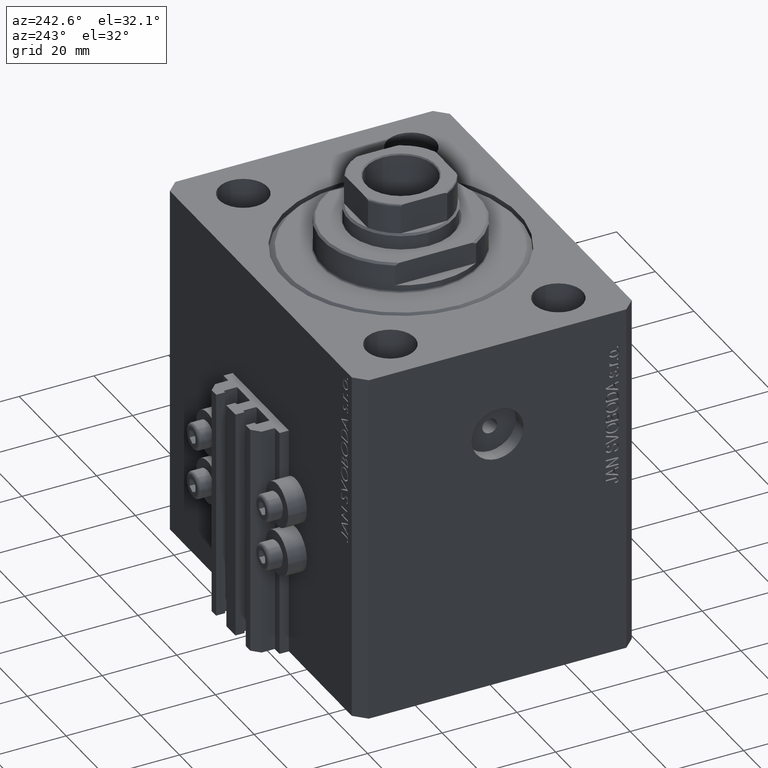
[diagram: clean part render]
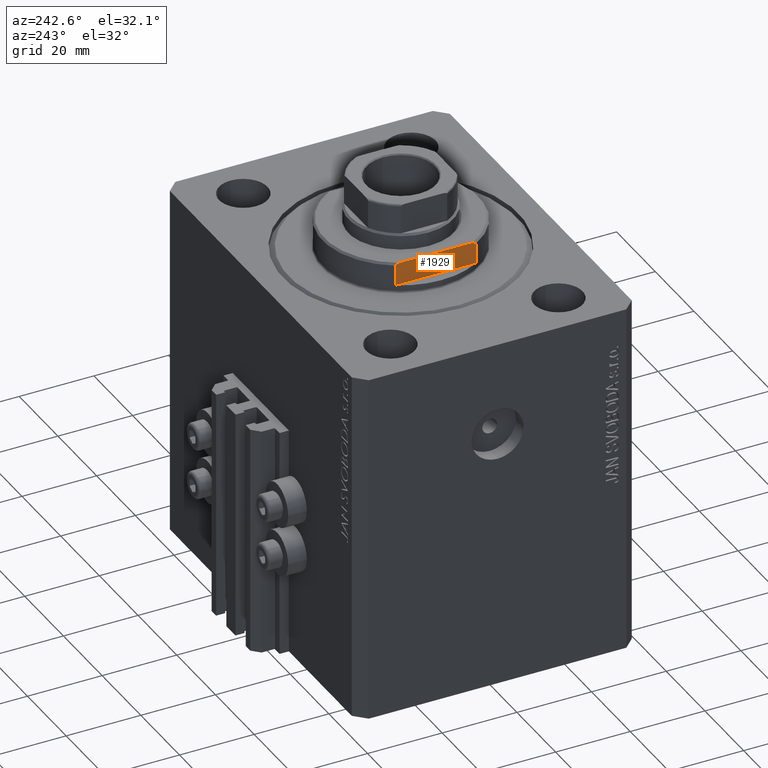
[diagram: same view with one face highlighted and labeled with its STEP entity id]
A machine part, auxiliary view. The second image highlights one B-rep face of the part: STEP entity #1929.
In plain terms, the highlighted planar face has unit normal (-1, 0, 0).
Its self-contained STEP definition (entity closure, byte-faithful):
#850 = VECTOR ( 'NONE', #22186, 1000.000000000000000 ) ;
#1104 = ORIENTED_EDGE ( 'NONE', *, *, #19838, .F. ) ;
#1619 = DIRECTION ( 'NONE',  ( 0.000000000000000000, 0.000000000000000000, -1.000000000000000000 ) ) ;
#1717 = CARTESIAN_POINT ( 'NONE',  ( 18.00000000000000000, -10.48405973417028214, -7.671312150488880377 ) ) ;
#1929 = ADVANCED_FACE ( 'NONE', ( #23910 ), #20087, .T. ) ;
#2259 = LINE ( 'NONE', #24796, #38349 ) ;
#4133 = VERTEX_POINT ( 'NONE', #41981 ) ;
#4980 = CARTESIAN_POINT ( 'NONE',  ( 18.00000000000000000, -10.81665382639197048, -8.000000000000000000 ) ) ;
#6198 = EDGE_CURVE ( 'NONE', #21457, #24071, #28784, .T. ) ;
#8568 = VERTEX_POINT ( 'NONE', #33782 ) ;
#10661 = B_SPLINE_CURVE_WITH_KNOTS ( 'NONE', 3,
 ( #45535, #19485, #1717, #24236 ),
 .UNSPECIFIED., .F., .F.,
 ( 4, 4 ),
 ( 0.06217926064546099030, 0.06331210020887999279 ),
 .UNSPECIFIED. ) ;
#11036 = DIRECTION ( 'NONE',  ( -0.000000000000000000, -0.000000000000000000, 1.000000000000000000 ) ) ;
#15638 = VERTEX_POINT ( 'NONE', #16148 ) ;
#16148 = CARTESIAN_POINT ( 'NONE',  ( 18.00000000000000000, 9.810708435174301911, -8.000000000000000000 ) ) ;
#16960 = EDGE_CURVE ( 'NONE', #29620, #4133, #38498, .T. ) ;
#17552 = CARTESIAN_POINT ( 'NONE',  ( 18.00000000000000000, 10.81665382639197048, -7.499999999999988454 ) ) ;
#19485 = CARTESIAN_POINT ( 'NONE',  ( 18.00000000000000000, -10.14885752588742918, -7.838171603092464856 ) ) ;
#19838 = EDGE_CURVE ( 'NONE', #8568, #4133, #10661, .T. ) ;
#20087 = PLANE ( 'NONE',  #37432 ) ;
#20805 = DIRECTION ( 'NONE',  ( -0.000000000000000000, 0.000000000000000000, -1.000000000000000000 ) ) ;
#21457 = VERTEX_POINT ( 'NONE', #46495 ) ;
#21499 = EDGE_CURVE ( 'NONE', #21457, #15638, #24312, .T. ) ;
#22186 = DIRECTION ( 'NONE',  ( 0.000000000000000000, -1.000000000000000000, -0.000000000000000000 ) ) ;
#23910 = FACE_OUTER_BOUND ( 'NONE', #46872, .T. ) ;
#24071 = VERTEX_POINT ( 'NONE', #29515 ) ;
#24236 = CARTESIAN_POINT ( 'NONE',  ( 18.00000000000000000, -10.81665382639197048, -7.499999999999989342 ) ) ;
#24312 = B_SPLINE_CURVE_WITH_KNOTS ( 'NONE', 3,
 ( #17552, #46977, #39351, #39583 ),
 .UNSPECIFIED., .F., .F.,
 ( 4, 4 ),
 ( 0.04062426037072729146, 0.04174950919407411504 ),
 .UNSPECIFIED. ) ;
#24713 = CARTESIAN_POINT ( 'NONE',  ( 18.00000000000000000, 10.81665382639197048, -8.000000000000000000 ) ) ;
#24796 = CARTESIAN_POINT ( 'NONE',  ( 18.00000000000000000, -41.24318125460256113, -2.000000000000000000 ) ) ;
#25376 = ORIENTED_EDGE ( 'NONE', *, *, #6198, .T. ) ;
#25555 = CARTESIAN_POINT ( 'NONE',  ( 18.00000000000000000, -41.24318125460256113, -8.000000000000000000 ) ) ;
#27716 = ORIENTED_EDGE ( 'NONE', *, *, #16960, .T. ) ;
#28225 = CARTESIAN_POINT ( 'NONE',  ( 18.00000000000000000, -41.24318125460256113, -2.000000000000000000 ) ) ;
#28428 = VECTOR ( 'NONE', #11036, 1000.000000000000000 ) ;
#28784 = LINE ( 'NONE', #24713, #28428 ) ;
#29515 = CARTESIAN_POINT ( 'NONE',  ( 18.00000000000000000, 10.81665382639197048, -2.000000000000000000 ) ) ;
#29620 = VERTEX_POINT ( 'NONE', #44549 ) ;
#29675 = ORIENTED_EDGE ( 'NONE', *, *, #31564, .T. ) ;
#30158 = EDGE_CURVE ( 'NONE', #15638, #8568, #40617, .T. ) ;
#31564 = EDGE_CURVE ( 'NONE', #24071, #29620, #2259, .T. ) ;
#33782 = CARTESIAN_POINT ( 'NONE',  ( 18.00000000000000000, -9.810708435174301911, -8.000000000000000000 ) ) ;
#35482 = VECTOR ( 'NONE', #1619, 1000.000000000000000 ) ;
#37432 = AXIS2_PLACEMENT_3D ( 'NONE', #28225, #46161, #20805 ) ;
#38349 = VECTOR ( 'NONE', #43221, 1000.000000000000000 ) ;
#38498 = LINE ( 'NONE', #4980, #35482 ) ;
#39057 = ORIENTED_EDGE ( 'NONE', *, *, #30158, .F. ) ;
#39351 = CARTESIAN_POINT ( 'NONE',  ( 18.00000000000000000, 10.14839560199153112, -7.838392666539315989 ) ) ;
#39583 = CARTESIAN_POINT ( 'NONE',  ( 18.00000000000000000, 9.810708435174301911, -8.000000000000000000 ) ) ;
#40617 = LINE ( 'NONE', #25555, #850 ) ;
#41981 = CARTESIAN_POINT ( 'NONE',  ( 18.00000000000000000, -10.81665382639197048, -7.499999999999989342 ) ) ;
#43221 = DIRECTION ( 'NONE',  ( 0.000000000000000000, -1.000000000000000000, -0.000000000000000000 ) ) ;
#44388 = ORIENTED_EDGE ( 'NONE', *, *, #21499, .F. ) ;
#44549 = CARTESIAN_POINT ( 'NONE',  ( 18.00000000000000000, -10.81665382639197048, -2.000000000000000000 ) ) ;
#45535 = CARTESIAN_POINT ( 'NONE',  ( 18.00000000000000000, -9.810708435174301911, -8.000000000000000000 ) ) ;
#46161 = DIRECTION ( 'NONE',  ( 1.000000000000000000, 0.000000000000000000, -0.000000000000000000 ) ) ;
#46495 = CARTESIAN_POINT ( 'NONE',  ( 18.00000000000000000, 10.81665382639197048, -7.499999999999988454 ) ) ;
#46872 = EDGE_LOOP ( 'NONE', ( #25376, #29675, #27716, #1104, #39057, #44388 ) ) ;
#46977 = CARTESIAN_POINT ( 'NONE',  ( 18.00000000000000000, 10.48362233087180151, -7.671537447634628748 ) ) ;